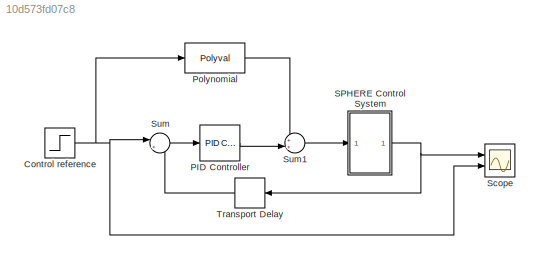
MODEL slx_10d573fd07c8
KIND model
CONFIG AbsTol = auto
CONFIG EnableMultiTasking = off
CONFIG FixedStep = 0.001
CONFIG MaxStep = auto
CONFIG MinStep = auto
CONFIG RelTol = 1e-3
CONFIG SampleTimeConstraint = Unconstrained
CONFIG Solver = ode4
CONFIG SolverName = ode4
CONFIG StartTime = 0.0
CONFIG StopTime = 100
BLOCK [Step] Control reference
  After = 15
  SampleTime = 0
  Time = 5
BLOCK [Reference] PID Controller  REF=simulink/Continuous/PID Controller
  Ports = [1, 1]
  SourceBlock = simulink/Continuous/PID Controller
  SourceProductBaseCode = SL
  SourceType = PID 1dof
BLOCK [Polyval] Polynomial
  Coefs = [0.000325 0.001274 1.044515 0]
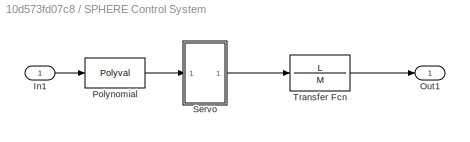
BLOCK [SubSystem] SPHERE Control System
  Ports = [1, 1]
  RequestExecContextInheritance = off
BLOCK [Inport] SPHERE Control System/In1
BLOCK [Outport] SPHERE Control System/Out1
BLOCK [Polyval] SPHERE Control System/Polynomial
  Coefs = [-0.000067 -0.000287 0.871698 0]
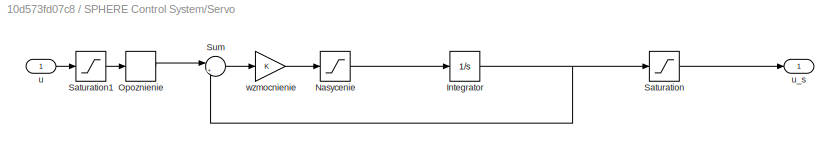
BLOCK [SubSystem] SPHERE Control System/Servo
  Ports = [1, 1]
  RequestExecContextInheritance = off
BLOCK [Integrator] SPHERE Control System/Servo/Integrator
  Ports = [1, 1]
BLOCK [Saturate] SPHERE Control System/Servo/Nasycenie
  LowerLimit = Smin
  UpperLimit = Smax
BLOCK [TransportDelay] SPHERE Control System/Servo/Opoznienie
  DelayTime = Top
  Ports = [1, 1]
BLOCK [Saturate] SPHERE Control System/Servo/Saturation
  LowerLimit = -60
  UpperLimit = 60
BLOCK [Saturate] SPHERE Control System/Servo/Saturation1
  LowerLimit = -60
  UpperLimit = 60
BLOCK [Sum] SPHERE Control System/Servo/Sum
  Inputs = |+-
  Ports = [2, 1]
BLOCK [Inport] SPHERE Control System/Servo/u
BLOCK [Outport] SPHERE Control System/Servo/u_s
BLOCK [Gain] SPHERE Control System/Servo/wzmocnienie
  Gain = K
BLOCK [TransferFcn] SPHERE Control System/Transfer Fcn
  Denominator = M
  Numerator = L
BLOCK [Scope] Scope
  Floating = off
  NumInputPorts = 2
  Ports = [2]
  ScopeSpecificationString = Simulink.scopes.TimeScopeBlockCfg('CurrentConfiguration', extmgr.ConfigurationSet(extmgr.Configuration('Core','General UI',true),extmgr.Configuration('Core','Source UI',true),extmgr.Configuration('Sources','WiredSimulink',true),extmgr.Configuration('Visuals','Time Domain',true,'SerializedDisplays',{struct('MinYLimReal','-3.9551','MaxYLimReal','33.10663','YLabelReal','','MinYLimMag','0.00000','MaxY...<+1392ch>
BLOCK [Sum] Sum
  Inputs = |+-
  Ports = [2, 1]
BLOCK [Sum] Sum1
  Inputs = ++|
  Ports = [2, 1]
BLOCK [TransportDelay] Transport Delay
  DelayTime = delay_r
  NameLocation = top
  Ports = [1, 1]
NET Control reference:1 -> Polynomial:1, Scope:2, Sum:1
LINE PID Controller:1 -> Sum1:2
LINE Polynomial:1 -> Sum1:1
LINE SPHERE Control System/In1:1 -> SPHERE Control System/Polynomial:1
LINE SPHERE Control System/Polynomial:1 -> SPHERE Control System/Servo:1
NET SPHERE Control System/Servo/Integrator:1 -> SPHERE Control System/Servo/Saturation:1, SPHERE Control System/Servo/Sum:2
LINE SPHERE Control System/Servo/Nasycenie:1 -> SPHERE Control System/Servo/Integrator:1
LINE SPHERE Control System/Servo/Opoznienie:1 -> SPHERE Control System/Servo/Sum:1
LINE SPHERE Control System/Servo/Saturation1:1 -> SPHERE Control System/Servo/Opoznienie:1
LINE SPHERE Control System/Servo/Saturation:1 -> SPHERE Control System/Servo/u_s:1
LINE SPHERE Control System/Servo/Sum:1 -> SPHERE Control System/Servo/wzmocnienie:1
LINE SPHERE Control System/Servo/u:1 -> SPHERE Control System/Servo/Saturation1:1
LINE SPHERE Control System/Servo/wzmocnienie:1 -> SPHERE Control System/Servo/Nasycenie:1
LINE SPHERE Control System/Servo:1 -> SPHERE Control System/Transfer Fcn:1
LINE SPHERE Control System/Transfer Fcn:1 -> SPHERE Control System/Out1:1
NET SPHERE Control System:1 -> Scope:1, Transport Delay:1
LINE Sum1:1 -> SPHERE Control System:1
LINE Sum:1 -> PID Controller:1
LINE Transport Delay:1 -> Sum:2
note: NET lines group one-source signal fan-out (src -> all destinations, sorted); 1:1 wires keep LINE
